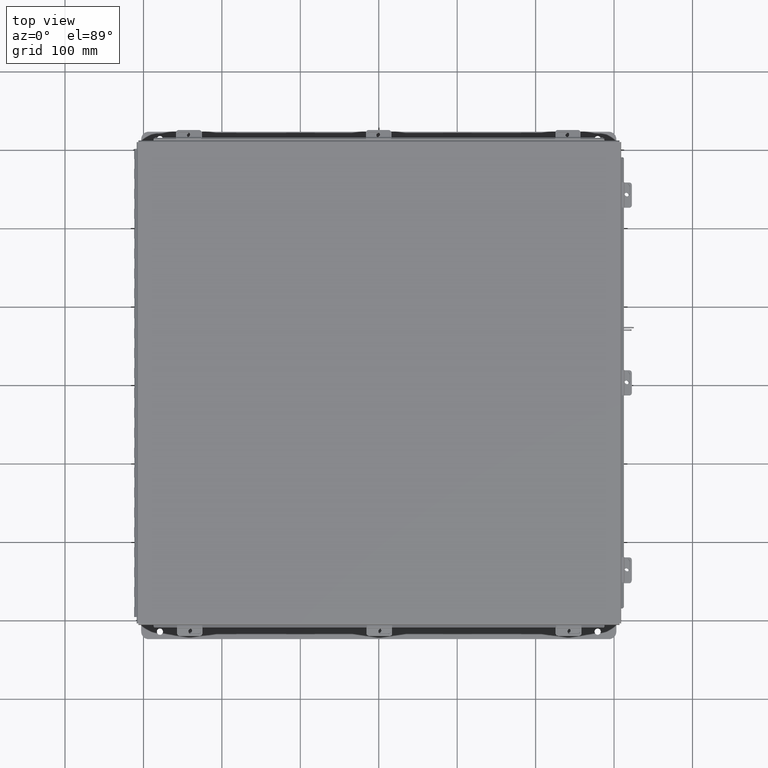
[diagram: clean part render]
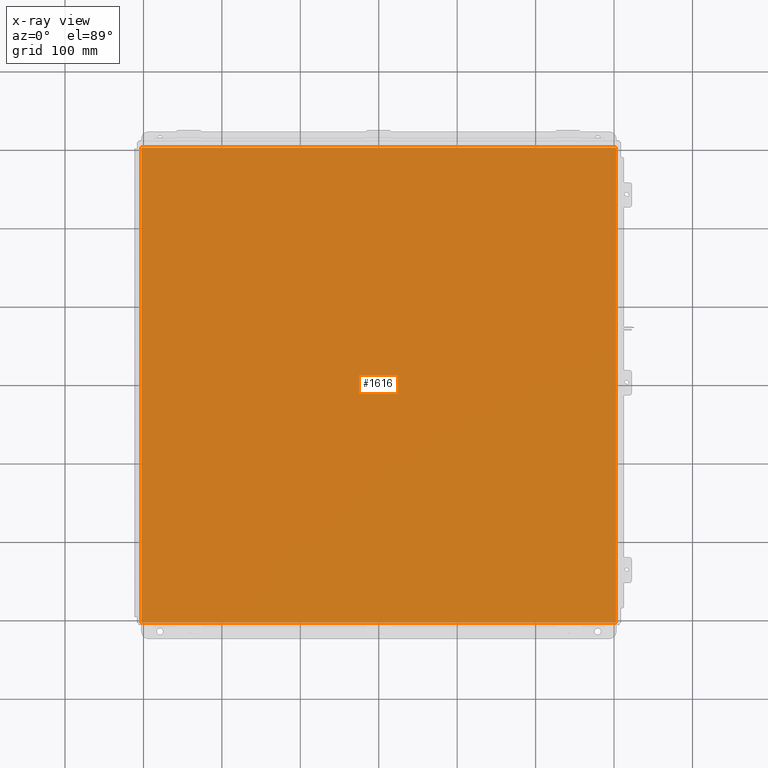
[diagram: x-ray — body ghosted, one internal face saturated and labeled with its STEP entity id]
A machine part, top view, then the same camera in x-ray: the body is ghosted and one INTERNAL B-rep face — a face not visible from any outside direction — is saturated and labeled: STEP entity #1616.
In plain terms, the highlighted planar face has unit normal (0, 0, -1).
Its self-contained STEP definition (entity closure, byte-faithful):
#1191 = CARTESIAN_POINT ( 'NONE',  ( 11.91230000000000000, -11.92530000000000000, 5.122214988120493500E-017 ) ) ;
#1616 = ADVANCED_FACE ( 'NONE', ( #16346 ), #10415, .F. ) ;
#1619 = EDGE_CURVE ( 'NONE', #12843, #2949, #16087, .T. ) ;
#2838 = EDGE_CURVE ( 'NONE', #12843, #16220, #13003, .T. ) ;
#2896 = AXIS2_PLACEMENT_3D ( 'NONE', #10282, #10321, #10188 ) ;
#2944 = EDGE_CURVE ( 'NONE', #8791, #2949, #24827, .T. ) ;
#2949 = VERTEX_POINT ( 'NONE', #1191 ) ;
#6695 = DIRECTION ( 'NONE',  ( -0.0000000000000000000, -1.000000000000000000, -0.0000000000000000000 ) ) ;
#7457 = CARTESIAN_POINT ( 'NONE',  ( 11.91230000000000000, 11.92530000000000000, 5.122214988120493500E-017 ) ) ;
#8418 = CARTESIAN_POINT ( 'NONE',  ( -12.00000000000000200, -11.92530000000000000, 0.0000000000000000000 ) ) ;
#8639 = VECTOR ( 'NONE', #21770, 39.37007874015748100 ) ;
#8791 = VERTEX_POINT ( 'NONE', #17963 ) ;
#9686 = ORIENTED_EDGE ( 'NONE', *, *, #9772, .T. ) ;
#9772 = EDGE_CURVE ( 'NONE', #8791, #16220, #10705, .T. ) ;
#10085 = VECTOR ( 'NONE', #18080, 39.37007874015748100 ) ;
#10188 = DIRECTION ( 'NONE',  ( -1.000000000000000000, 0.0000000000000000000, -0.0000000000000000000 ) ) ;
#10282 = CARTESIAN_POINT ( 'NONE',  ( 0.0000000000000000000, 0.0000000000000000000, 0.0000000000000000000 ) ) ;
#10321 = DIRECTION ( 'NONE',  ( 0.0000000000000000000, 0.0000000000000000000, -1.000000000000000000 ) ) ;
#10415 = PLANE ( 'NONE',  #2896 ) ;
#10543 = ORIENTED_EDGE ( 'NONE', *, *, #2838, .F. ) ;
#10589 = EDGE_LOOP ( 'NONE', ( #11451, #9686, #10543, #22398 ) ) ;
#10705 = LINE ( 'NONE', #12709, #10085 ) ;
#11451 = ORIENTED_EDGE ( 'NONE', *, *, #2944, .F. ) ;
#11578 = DIRECTION ( 'NONE',  ( 1.000000000000000000, 0.0000000000000000000, 0.0000000000000000000 ) ) ;
#12709 = CARTESIAN_POINT ( 'NONE',  ( -12.00000000000000200, 11.92530000000000000, 0.0000000000000000000 ) ) ;
#12843 = VERTEX_POINT ( 'NONE', #21268 ) ;
#13003 = LINE ( 'NONE', #17369, #8639 ) ;
#13975 = CARTESIAN_POINT ( 'NONE',  ( -11.91230000000000000, 11.92530000000000000, 5.122214988120493500E-017 ) ) ;
#15466 = VECTOR ( 'NONE', #11578, 39.37007874015748100 ) ;
#16087 = LINE ( 'NONE', #8418, #15466 ) ;
#16220 = VERTEX_POINT ( 'NONE', #13975 ) ;
#16346 = FACE_OUTER_BOUND ( 'NONE', #10589, .T. ) ;
#17369 = CARTESIAN_POINT ( 'NONE',  ( -11.91230000000000000, -11.92530000000000000, 5.122214988120493500E-017 ) ) ;
#17963 = CARTESIAN_POINT ( 'NONE',  ( 11.91230000000000000, 11.92529999999999800, 5.122214988120493500E-017 ) ) ;
#18080 = DIRECTION ( 'NONE',  ( -1.000000000000000000, -0.0000000000000000000, -0.0000000000000000000 ) ) ;
#21268 = CARTESIAN_POINT ( 'NONE',  ( -11.91230000000000000, -11.92529999999999800, 5.122214988120493500E-017 ) ) ;
#21770 = DIRECTION ( 'NONE',  ( -0.0000000000000000000, 1.000000000000000000, -0.0000000000000000000 ) ) ;
#22398 = ORIENTED_EDGE ( 'NONE', *, *, #1619, .T. ) ;
#24803 = VECTOR ( 'NONE', #6695, 39.37007874015748100 ) ;
#24827 = LINE ( 'NONE', #7457, #24803 ) ;